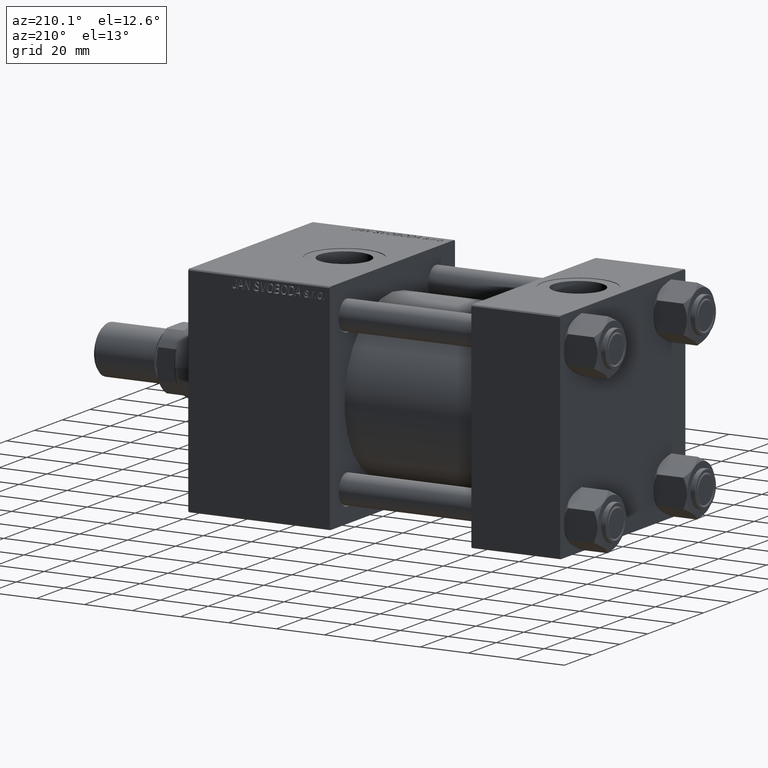
[diagram: clean part render]
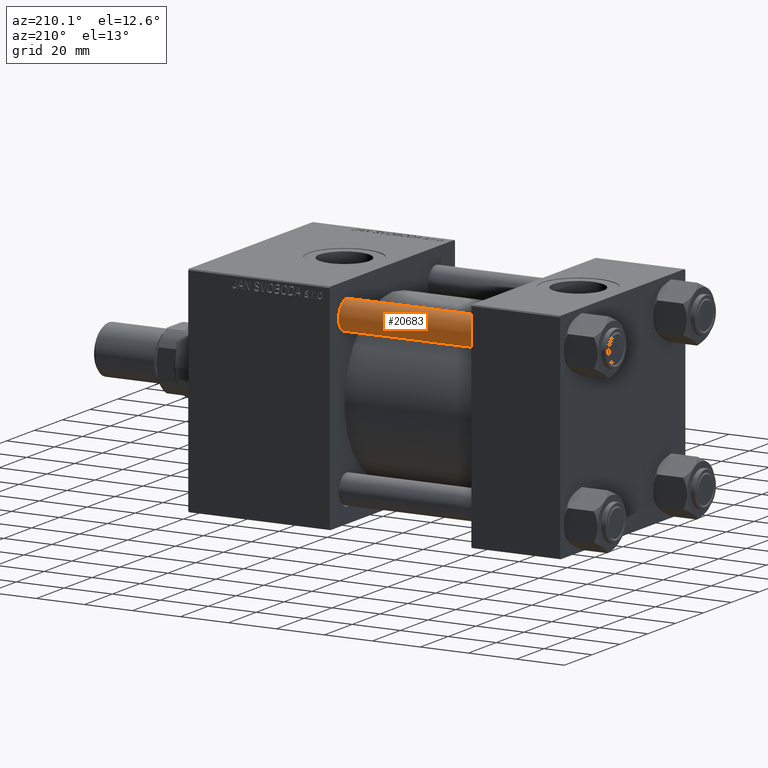
[diagram: same view with one face highlighted and labeled with its STEP entity id]
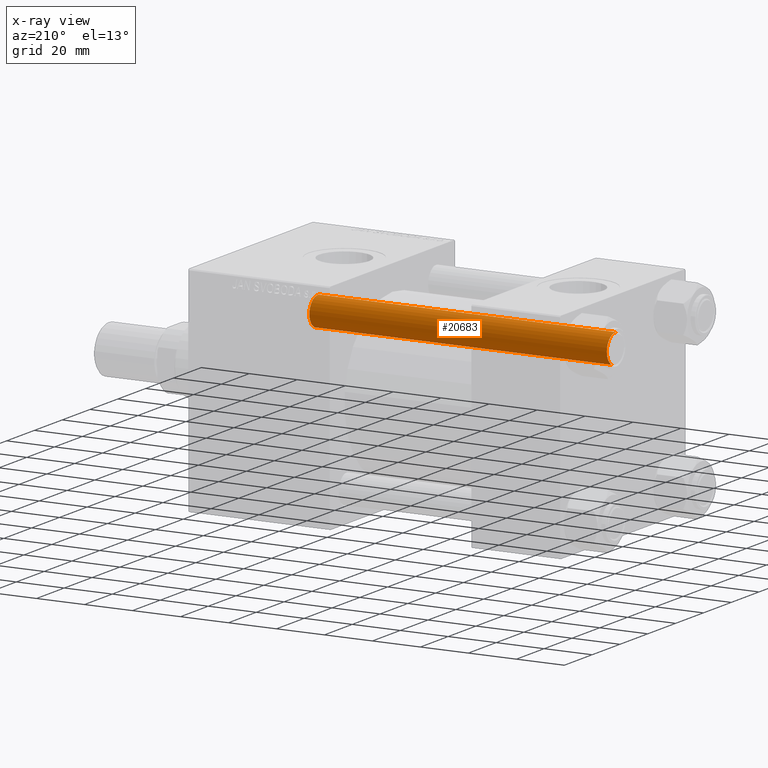
[diagram: x-ray of the same camera — body ghosted, the highlighted face saturated]
A machine part, auxiliary view. The second image highlights one B-rep face of the part: STEP entity #20683.
The next image is the same camera in x-ray: the body ghosted, the highlighted face saturated — about 0% of this face is hidden behind the body in this view.
In plain terms, the highlighted cylindrical surface (edge-blend (fillet) strip) has radius 6 mm, axis along (-1, 0, 0).
Its self-contained STEP definition (entity closure, byte-faithful):
#153 = ORIENTED_EDGE ( 'NONE', *, *, #10427, .T. ) ;
#267 = VERTEX_POINT ( 'NONE', #39252 ) ;
#1041 = CARTESIAN_POINT ( 'NONE',  ( 0.000000000000000000, 0.000000000000000000, 124.5000000000000000 ) ) ;
#2014 = CIRCLE ( 'NONE', #33998, 6.000000000000000888 ) ;
#2977 = EDGE_CURVE ( 'NONE', #10871, #267, #35742, .T. ) ;
#5376 = CARTESIAN_POINT ( 'NONE',  ( 6.000000000000000888, 7.347880794884120722E-16, 124.5000000000000000 ) ) ;
#6749 = AXIS2_PLACEMENT_3D ( 'NONE', #1041, #47831, #16738 ) ;
#6887 = CYLINDRICAL_SURFACE ( 'NONE', #25291, 6.000000000000000888 ) ;
#8724 = ORIENTED_EDGE ( 'NONE', *, *, #50555, .T. ) ;
#9448 = CARTESIAN_POINT ( 'NONE',  ( -6.000000000000000888, 0.000000000000000000, 125.0000000000000000 ) ) ;
#10227 = CARTESIAN_POINT ( 'NONE',  ( -6.000000000000000888, 0.000000000000000000, 124.5000000000000000 ) ) ;
#10427 = EDGE_CURVE ( 'NONE', #267, #18161, #2014, .T. ) ;
#10871 = VERTEX_POINT ( 'NONE', #5376 ) ;
#14239 = DIRECTION ( 'NONE',  ( -0.000000000000000000, -0.000000000000000000, 1.000000000000000000 ) ) ;
#16738 = DIRECTION ( 'NONE',  ( 1.000000000000000000, 0.000000000000000000, 0.000000000000000000 ) ) ;
#18161 = VERTEX_POINT ( 'NONE', #48605 ) ;
#20683 = ADVANCED_FACE ( 'NONE', ( #26157 ), #6887, .T. ) ;
#22206 = CARTESIAN_POINT ( 'NONE',  ( 0.000000000000000000, 0.000000000000000000, 0.4999999999999865663 ) ) ;
#23963 = CIRCLE ( 'NONE', #6749, 6.000000000000000888 ) ;
#25101 = EDGE_CURVE ( 'NONE', #43758, #18161, #44646, .T. ) ;
#25291 = AXIS2_PLACEMENT_3D ( 'NONE', #41815, #49277, #38454 ) ;
#26157 = FACE_OUTER_BOUND ( 'NONE', #32662, .T. ) ;
#26278 = VECTOR ( 'NONE', #35896, 1000.000000000000000 ) ;
#32662 = EDGE_LOOP ( 'NONE', ( #8724, #42346, #153, #38574 ) ) ;
#33998 = AXIS2_PLACEMENT_3D ( 'NONE', #22206, #14239, #49704 ) ;
#35742 = LINE ( 'NONE', #43465, #42086 ) ;
#35896 = DIRECTION ( 'NONE',  ( -0.000000000000000000, -0.000000000000000000, -1.000000000000000000 ) ) ;
#38454 = DIRECTION ( 'NONE',  ( -1.000000000000000000, 0.000000000000000000, 0.000000000000000000 ) ) ;
#38574 = ORIENTED_EDGE ( 'NONE', *, *, #25101, .F. ) ;
#39252 = CARTESIAN_POINT ( 'NONE',  ( 6.000000000000000888, 7.347880794884120722E-16, 0.4999999999999865663 ) ) ;
#39593 = DIRECTION ( 'NONE',  ( -0.000000000000000000, -0.000000000000000000, -1.000000000000000000 ) ) ;
#41815 = CARTESIAN_POINT ( 'NONE',  ( 0.000000000000000000, 0.000000000000000000, 125.0000000000000000 ) ) ;
#42086 = VECTOR ( 'NONE', #39593, 1000.000000000000000 ) ;
#42346 = ORIENTED_EDGE ( 'NONE', *, *, #2977, .T. ) ;
#43465 = CARTESIAN_POINT ( 'NONE',  ( 6.000000000000000888, 7.347880794884120722E-16, 125.0000000000000000 ) ) ;
#43758 = VERTEX_POINT ( 'NONE', #10227 ) ;
#44646 = LINE ( 'NONE', #9448, #26278 ) ;
#47831 = DIRECTION ( 'NONE',  ( 0.000000000000000000, 0.000000000000000000, -1.000000000000000000 ) ) ;
#48605 = CARTESIAN_POINT ( 'NONE',  ( -6.000000000000000888, 0.000000000000000000, 0.4999999999999865663 ) ) ;
#49277 = DIRECTION ( 'NONE',  ( -0.000000000000000000, -0.000000000000000000, -1.000000000000000000 ) ) ;
#49704 = DIRECTION ( 'NONE',  ( 1.000000000000000000, 0.000000000000000000, 0.000000000000000000 ) ) ;
#50555 = EDGE_CURVE ( 'NONE', #43758, #10871, #23963, .T. ) ;